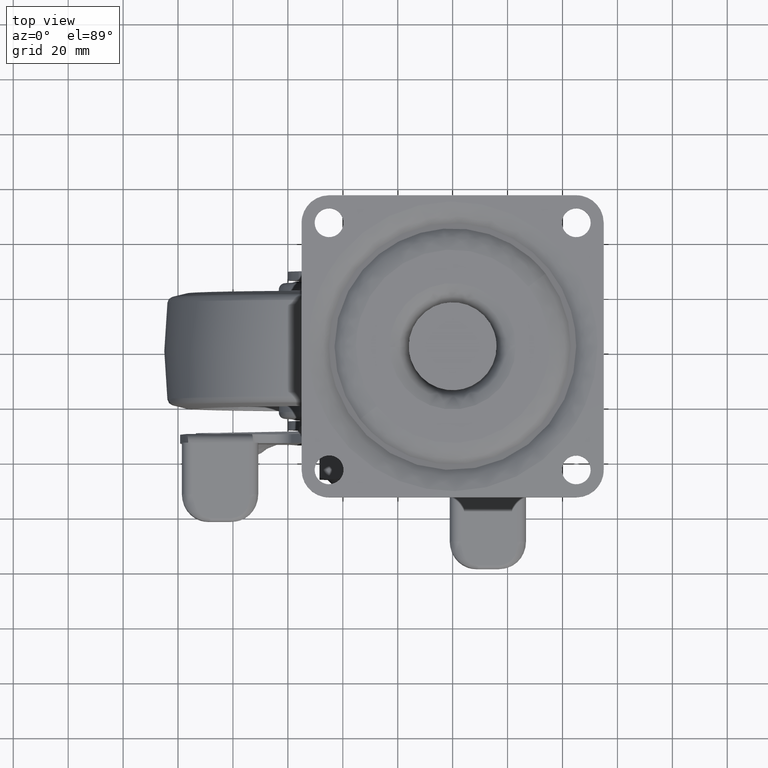
[diagram: clean part render]
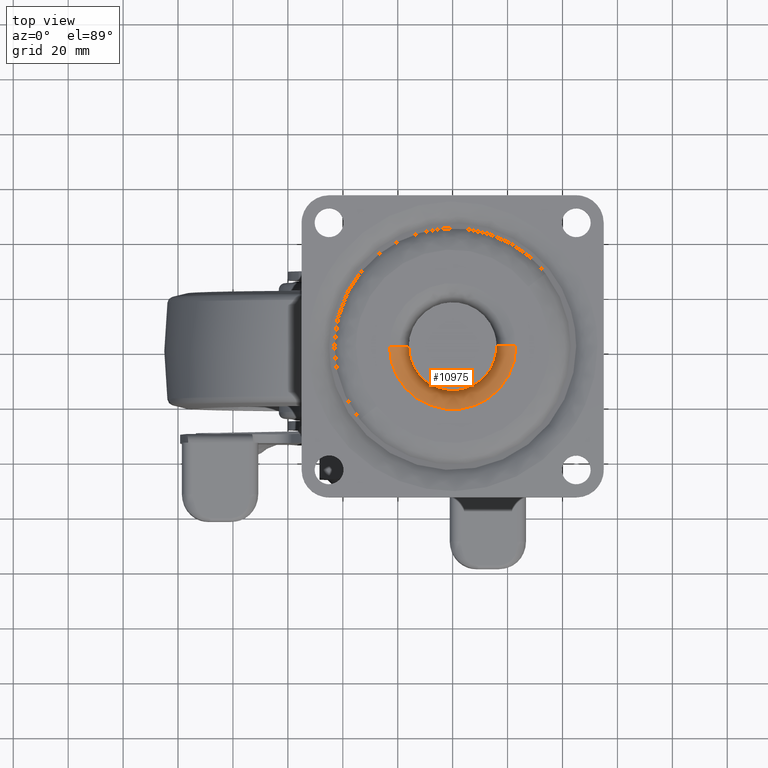
[diagram: same view with one face highlighted and labeled with its STEP entity id]
A machine part, top view. The second image highlights one B-rep face of the part: STEP entity #10975.
In plain terms, the highlighted face is a freeform B-spline surface patch.
Its self-contained STEP definition (entity closure, byte-faithful):
#9130=CARTESIAN_POINT('',(-15.998736707259440,-0.201056638262598,-6.999999998808875));
#9131=VERTEX_POINT('',#9130);
#9145=CARTESIAN_POINT('',(-0.976764581986514,-15.970157511785249,-6.999999999361727));
#9146=VERTEX_POINT('',#9145);
#9147=CARTESIAN_POINT('',(-15.998736707259436,-0.201056638262598,-6.999999998808875));
#9148=CARTESIAN_POINT('',(-15.811968590310460,-15.062808800218360,-6.999999998811043));
#9149=CARTESIAN_POINT('',(-0.976764581986514,-15.970157511785253,-6.999999999361727));
#9157=(BOUNDED_CURVE()B_SPLINE_CURVE(2,(#9147,#9148,#9149),.UNSPECIFIED.,.F.,.U.)B_SPLINE_CURVE_WITH_KNOTS((3,3),(0.002215704079689,0.239333092440288),.UNSPECIFIED.)CURVE()GEOMETRIC_REPRESENTATION_ITEM()RATIONAL_B_SPLINE_CURVE((0.994854295640750,0.721978181258893,0.976072320713144))REPRESENTATION_ITEM(''));
#9158=EDGE_CURVE('',#9131,#9146,#9157,.T.);
#9193=CARTESIAN_POINT('',(15.998736707259440,0.201056638262599,-6.999999998808873));
#9194=VERTEX_POINT('',#9193);
#9212=CARTESIAN_POINT('',(16.0,0.0,-7.0));
#9213=VERTEX_POINT('',#9212);
#9214=CARTESIAN_POINT('',(-0.976764581986514,-15.970157511785253,-6.999999999361727));
#9215=CARTESIAN_POINT('',(-0.488838170597581,-15.999999999995518,-6.999999999379919));
#9216=CARTESIAN_POINT('',(2.748534E-013,-15.999999999995589,-6.999999999398155));
#9217=CARTESIAN_POINT('',(16.000000000000124,-15.999999999997863,-6.999999999995027));
#9218=CARTESIAN_POINT('',(16.0,0.0,-7.0));
#9226=(BOUNDED_CURVE()B_SPLINE_CURVE(2,(#9214,#9215,#9216,#9217,#9218),.UNSPECIFIED.,.F.,.U.)B_SPLINE_CURVE_WITH_KNOTS((3,2,3),(0.239333092440288,0.250000000000000,0.500000000000000),.UNSPECIFIED.)CURVE()GEOMETRIC_REPRESENTATION_ITEM()RATIONAL_B_SPLINE_CURVE((0.976072320713144,0.987502940440202,1.0,0.707106781186548,1.0))REPRESENTATION_ITEM(''));
#9227=EDGE_CURVE('',#9146,#9213,#9226,.T.);
#9229=CARTESIAN_POINT('',(16.0,0.0,-7.0));
#9230=CARTESIAN_POINT('',(16.000000000000004,0.100532287934722,-6.999999999404436));
#9231=CARTESIAN_POINT('',(15.998736707259436,0.201056638262599,-6.999999998808873));
#9239=(BOUNDED_CURVE()B_SPLINE_CURVE(2,(#9229,#9230,#9231),.UNSPECIFIED.,.F.,.U.)B_SPLINE_CURVE_WITH_KNOTS((3,3),(0.500000000000000,0.502215704079689),.UNSPECIFIED.)CURVE()GEOMETRIC_REPRESENTATION_ITEM()RATIONAL_B_SPLINE_CURVE((1.0,0.997404141200647,0.994854295640750))REPRESENTATION_ITEM(''));
#9240=EDGE_CURVE('',#9213,#9194,#9239,.T.);
#10870=CARTESIAN_POINT('',(16.010052970582201,0.649015722225246,-7.486759763792726));
#10871=CARTESIAN_POINT('',(16.012850006112579,0.426446423211954,-7.486759763792726));
#10872=CARTESIAN_POINT('',(16.216949373614550,-15.814410248290551,-7.486759763792727));
#10873=CARTESIAN_POINT('',(0.201269562662006,-16.015679810952548,-7.486759763792726));
#10874=CARTESIAN_POINT('',(-15.814410248290551,-16.216949373614550,-7.486759763792727));
#10875=CARTESIAN_POINT('',(-16.018509615790947,0.023907297762602,-7.486759763792725));
#10876=CARTESIAN_POINT('',(-16.021306651319783,0.246476596653447,-7.486759763792726));
#10877=CARTESIAN_POINT('',(15.450589342724321,0.626336178868324,0.542760218124275));
#10878=CARTESIAN_POINT('',(15.453288637188638,0.411544457337416,0.542760218124275));
#10879=CARTESIAN_POINT('',(15.650255850112742,-15.261783261596715,0.542760218124274));
#10880=CARTESIAN_POINT('',(0.194236294258013,-15.456019555854731,0.542760218124275));
#10881=CARTESIAN_POINT('',(-15.261783261596715,-15.650255850112742,0.542760218124274));
#10882=CARTESIAN_POINT('',(-15.458750474519301,0.023071868700429,0.542760218124275));
#10883=CARTESIAN_POINT('',(-15.461449768982131,0.237863590113170,0.542760218124275));
#10884=CARTESIAN_POINT('',(23.476654517344965,0.951696906625109,-0.016944455277657));
#10885=CARTESIAN_POINT('',(23.480756005137668,0.625328058957725,-0.016944455277657));
#10886=CARTESIAN_POINT('',(23.780041107245502,-23.189769982452201,-0.016944455277657));
#10887=CARTESIAN_POINT('',(0.295135562396656,-23.484905544848846,-0.016944455277657));
#10888=CARTESIAN_POINT('',(-23.189769982452201,-23.780041107245502,-0.016944455277657));
#10889=CARTESIAN_POINT('',(-23.489055084557727,0.035056933980618,-0.016944455277657));
#10890=CARTESIAN_POINT('',(-23.493156572348173,0.361425781468450,-0.016944455277657));
#10898=(BOUNDED_SURFACE()B_SPLINE_SURFACE(2,2,((#10870,#10877,#10884),(#10871,#10878,#10885),(#10872,#10879,#10886),(#10873,#10880,#10887),(#10874,#10881,#10888),(#10875,#10882,#10889),(#10876,#10883,#10890)),.UNSPECIFIED.,.F.,.F.,.U.)B_SPLINE_SURFACE_WITH_KNOTS((3,1,2,1,3),(3,3),(0.0,0.778282761184766,39.692420808847118,78.606558856509466,79.384841617258473),(0.0,12.759109952945670),.UNSPECIFIED.)GEOMETRIC_REPRESENTATION_ITEM()RATIONAL_B_SPLINE_SURFACE(((0.921146729408122,0.604479481454517,0.921146741240756),(0.915813262249560,0.600979527148178,0.915813274013682),(0.643806437242182,0.422481857576905,0.643806445512228),(0.910479795090997,0.597479572841838,0.910479806786608),(0.643806437242182,0.422481857576905,0.643806445512228),(0.915813262246573,0.600979527146218,0.915813274010696),(0.921146729402150,0.604479481450598,0.921146741234784)))REPRESENTATION_ITEM('')SURFACE());
#10899=ORIENTED_EDGE('',*,*,#9240,.F.);
#10900=ORIENTED_EDGE('',*,*,#9227,.F.);
#10901=ORIENTED_EDGE('',*,*,#9158,.F.);
#10902=CARTESIAN_POINT('',(-22.998184016583391,-0.289018917486756,-1.508212E-015));
#10903=VERTEX_POINT('',#10902);
#10904=CARTESIAN_POINT('',(-15.998736707259436,-0.201056638262598,-6.999999998808876));
#10905=CARTESIAN_POINT('',(-15.998736708450203,-0.201056638298552,-1.022351E-010));
#10906=CARTESIAN_POINT('',(-22.998184016583394,-0.289018917486756,-1.508212E-015));
#10914=(BOUNDED_CURVE()B_SPLINE_CURVE(2,(#10904,#10905,#10906),.UNSPECIFIED.,.F.,.U.)B_SPLINE_CURVE_WITH_KNOTS((3,3),(-1.725134643107315,-0.274865356733163),.UNSPECIFIED.)CURVE()GEOMETRIC_REPRESENTATION_ITEM()RATIONAL_B_SPLINE_CURVE((0.883342149590799,0.624617224161383,0.883342149647716))REPRESENTATION_ITEM(''));
#10915=EDGE_CURVE('',#9131,#10903,#10914,.T.);
#10916=ORIENTED_EDGE('',*,*,#10915,.T.);
#10917=CARTESIAN_POINT('',(23.0,0.0,0.0));
#10918=VERTEX_POINT('',#10917);
#10919=CARTESIAN_POINT('',(23.0,0.0,0.0));
#10920=CARTESIAN_POINT('',(23.000117290351820,-1.311915802925779,-2.664234E-019));
#10921=CARTESIAN_POINT('',(22.778879877665862,-3.888805590312656,-8.051052E-018));
#10922=CARTESIAN_POINT('',(21.705749411843151,-8.030312738230990,-4.408922E-017));
#10923=CARTESIAN_POINT('',(19.956522838299328,-11.687312727839830,-1.021949E-016));
#10924=CARTESIAN_POINT('',(17.505695135538460,-15.073928657519531,-1.832484E-016));
#10925=CARTESIAN_POINT('',(14.702776154658570,-17.860374273383538,-2.757224E-016));
#10926=CARTESIAN_POINT('',(11.392050451813530,-20.106077662008961,-3.847346E-016));
#10927=CARTESIAN_POINT('',(8.186244534034946,-21.568283121718270,-4.901453E-016));
#10928=CARTESIAN_POINT('',(5.265528420346707,-22.451054367420671,-5.860893E-016));
#10929=CARTESIAN_POINT('',(2.395749949713751,-22.938452661196312,-6.802818E-016));
#10930=CARTESIAN_POINT('',(-0.935044414612375,-23.071455134277571,-7.895167E-016));
#10931=CARTESIAN_POINT('',(-5.001360298495119,-22.610779773385410,-9.227450E-016));
#10932=CARTESIAN_POINT('',(-8.902454871288262,-21.341488950560191,-1.050390E-015));
#10933=CARTESIAN_POINT('',(-12.006299498253140,-19.678364233645389,-1.151813E-015));
#10934=CARTESIAN_POINT('',(-14.432599483971380,-17.990227377011418,-1.231017E-015));
#10935=CARTESIAN_POINT('',(-16.486963852110581,-16.128479924823029,-1.297991E-015));
#10936=CARTESIAN_POINT('',(-18.435574169814021,-13.843899118121280,-1.361410E-015));
#10937=CARTESIAN_POINT('',(-20.100311840480739,-11.341634929037451,-1.415476E-015));
#10938=CARTESIAN_POINT('',(-21.592225040003001,-8.200606403413266,-1.463745E-015));
#10939=CARTESIAN_POINT('',(-22.687526272127268,-4.455362907543194,-1.498885E-015));
#10940=CARTESIAN_POINT('',(-22.980096794404592,-1.741373683744084,-1.507919E-015));
#10941=CARTESIAN_POINT('',(-22.998184016583391,-0.289018917486756,-1.508212E-015));
#10942=B_SPLINE_CURVE_WITH_KNOTS('',3,(#10919,#10920,#10921,#10922,#10923,#10924,#10925,#10926,#10927,#10928,#10929,#10930,#10931,#10932,#10933,#10934,#10935,#10936,#10937,#10938,#10939,#10940,#10941),.UNSPECIFIED.,.F.,.U.,(4,1,1,1,1,1,1,1,1,1,1,1,1,1,1,1,1,1,1,1,4),(0.000000364367637,3.935732858788725,7.730837527117828,12.791119442457729,16.024058660988469,20.240941758538231,24.598358962331901,27.971883092498551,30.783122845406091,33.734926621786506,36.686556684715541,40.762925261204487,45.963707571906298,48.915523319454643,51.305101675730448,54.819164000930577,57.208718394923231,60.301130362144299,63.815153889084307,67.610345644552154,71.967716503159011),.UNSPECIFIED.);
#10943=EDGE_CURVE('',#10918,#10903,#10942,.T.);
#10944=ORIENTED_EDGE('',*,*,#10943,.F.);
#10945=CARTESIAN_POINT('',(22.998184016583391,0.289018917486752,-1.508212E-015));
#10946=VERTEX_POINT('',#10945);
#10947=CARTESIAN_POINT('',(22.998184016583387,0.289018917486752,-1.508212E-015));
#10948=CARTESIAN_POINT('',(22.999999999948884,0.144515163898296,-7.541062E-016));
#10949=CARTESIAN_POINT('',(23.0,0.0,0.0));
#10957=(BOUNDED_CURVE()B_SPLINE_CURVE(2,(#10947,#10948,#10949),.UNSPECIFIED.,.F.,.U.)B_SPLINE_CURVE_WITH_KNOTS((3,3),(0.497784295920421,0.500000000000000),.UNSPECIFIED.)CURVE()GEOMETRIC_REPRESENTATION_ITEM()RATIONAL_B_SPLINE_CURVE((0.994854295641004,0.997404141200776,1.0))REPRESENTATION_ITEM(''));
#10958=EDGE_CURVE('',#10946,#10918,#10957,.T.);
#10959=ORIENTED_EDGE('',*,*,#10958,.F.);
#10960=CARTESIAN_POINT('',(15.998736707259440,0.201056638262599,-6.999999998808873));
#10961=CARTESIAN_POINT('',(15.998736708450201,0.201056638298551,-1.022371E-010));
#10962=CARTESIAN_POINT('',(22.998184016583394,0.289018917486752,-1.508212E-015));
#10970=(BOUNDED_CURVE()B_SPLINE_CURVE(2,(#10960,#10961,#10962),.UNSPECIFIED.,.F.,.U.)B_SPLINE_CURVE_WITH_KNOTS((3,3),(-1.725134643107315,-0.274865356733163),.UNSPECIFIED.)CURVE()GEOMETRIC_REPRESENTATION_ITEM()RATIONAL_B_SPLINE_CURVE((0.883342149590799,0.624617224161383,0.883342149647716))REPRESENTATION_ITEM(''));
#10971=EDGE_CURVE('',#9194,#10946,#10970,.T.);
#10972=ORIENTED_EDGE('',*,*,#10971,.F.);
#10973=EDGE_LOOP('',(#10899,#10900,#10901,#10916,#10944,#10959,#10972));
#10974=FACE_OUTER_BOUND('',#10973,.T.);
#10975=ADVANCED_FACE('',(#10974),#10898,.T.);